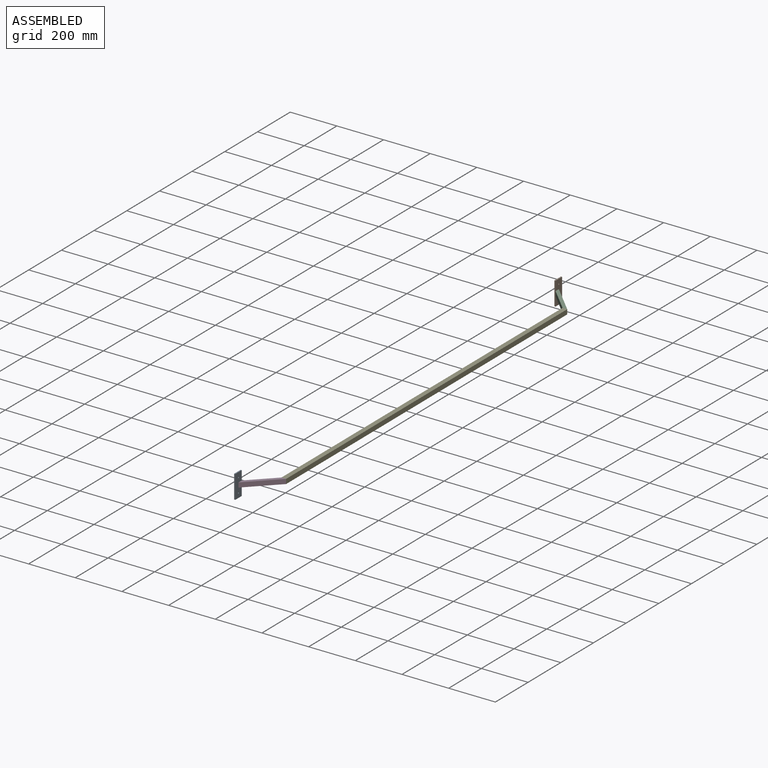
[diagram: assembled view]
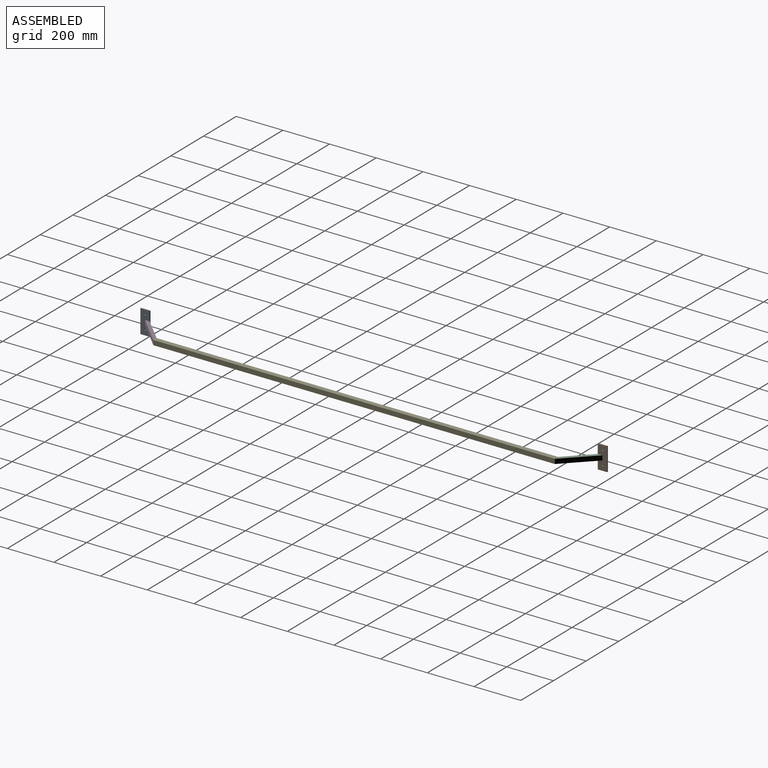
[diagram: assembled view, second angle]
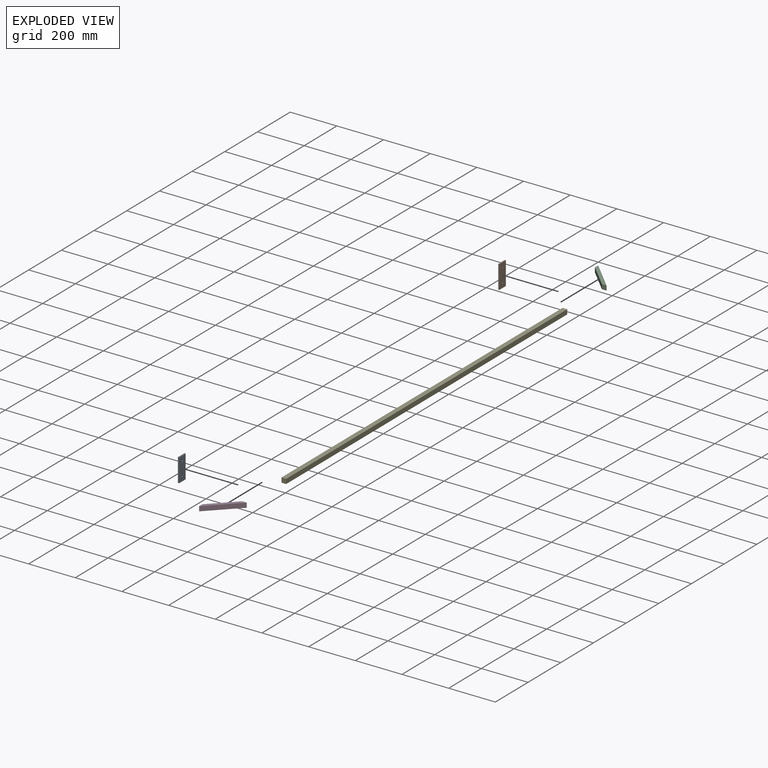
[diagram: exploded view]
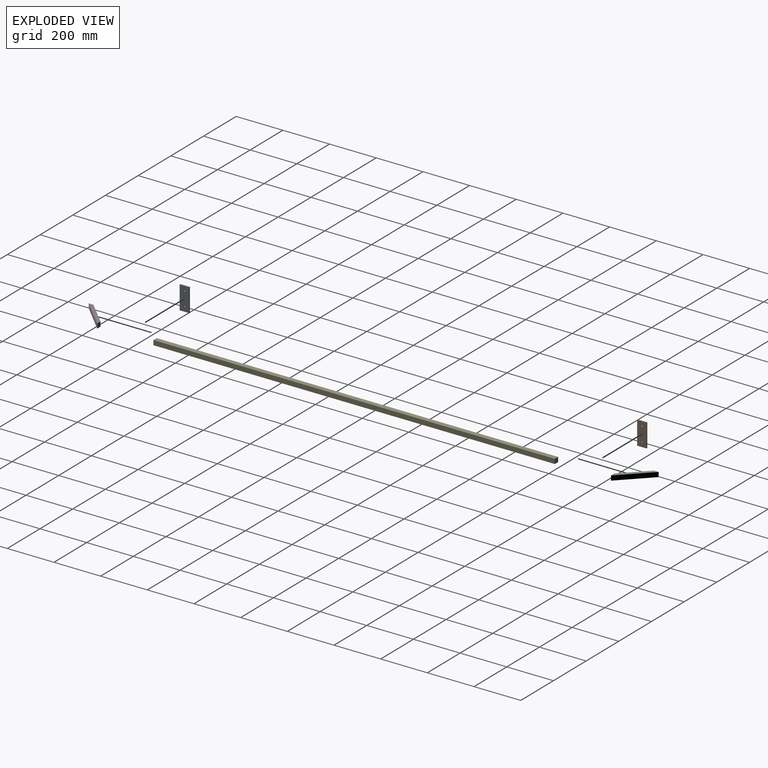
[diagram: exploded view, second angle]
ASSEMBLY  parts=5 mates=6
PART A: 8 faces, bbox 40x5x100 mm
  f0: plane 40x5mm, normal (0,0,1), area 200mm2, adj f1,f5,f6,f7
  f1: plane 100x5mm, normal (-1,0,0), area 500mm2, adj f0,f2,f6,f7
  f2: plane 40x5mm, normal (0,0,-1), area 200mm2, adj f1,f5,f6,f7
  f3: cylinder r=3mm len=6mm, axis (0,1,0), area 94.2mm2, adj f6,f7
  f4: cylinder r=3mm len=6mm, axis (0,1,0), area 94.2mm2, adj f6,f7
  f5: plane 100x5mm, normal (1,0,0), area 500mm2, adj f0,f2,f6,f7
  f6: plane 100x40mm, normal (0,-1,0), area 3943.5mm2, adj f0,f1,f2,f3,f4,f5
  f7: plane 100x40mm, normal (0,1,0), area 3943.5mm2, adj f0,f1,f2,f3,f4,f5
PART B: same geometry as A
PART C: 6 faces, bbox 120x120x20 mm
  f0: plane 120x120mm, normal (-0.71,-0.71,0), area 3394.1mm2, adj f1,f3,f4,f5
  f1: plane 20x20mm, normal (1,0,0), area 400mm2, adj f0,f2,f4,f5
  f2: plane 100x100mm, normal (0.71,0.71,0), area 2828.4mm2, adj f1,f3,f4,f5
  f3: plane 20x20mm, normal (0,1,0), area 400mm2, adj f0,f2,f4,f5
  f4: plane 120x120mm, normal (0,0,1), area 2200mm2, adj f0,f1,f2,f3
  f5: plane 120x120mm, normal (0,0,-1), area 2200mm2, adj f0,f1,f2,f3
PART D: same geometry as C
PART E: 6 faces, bbox 1720x20x20 mm
  f0: plane 1720x20mm, normal (0,1,0), area 34400mm2, adj f1,f3,f4,f5
  f1: plane 20x20mm, normal (-1,0,0), area 400mm2, adj f0,f2,f4,f5
  f2: plane 1720x20mm, normal (0,-1,0), area 34400mm2, adj f1,f3,f4,f5
  f3: plane 20x20mm, normal (1,0,0), area 400mm2, adj f0,f2,f4,f5
  f4: plane 1720x20mm, normal (0,0,1), area 34400mm2, adj f0,f1,f2,f3
  f5: plane 1720x20mm, normal (0,0,-1), area 34400mm2, adj f0,f1,f2,f3
PLACE A rot(axis=(-0.71,0.71,0),180deg) t=(-1278.45,418.43,77.26)mm
PLACE B rot(axis=(-0.71,0.71,0),180deg) t=(-1278.45,2378.43,77.26)mm
PLACE C rot(axis=(-0.71,0.71,0),180deg) t=(-1225.21,1839.5,87.26)mm
PLACE D rot(axis=(0,0,1),90deg) t=(-1225.21,957.35,67.26)mm
PLACE E rot(axis=(0,0,-1),90deg) t=(-1163.45,1398.43,67.26)mm
MATE planar D.f1 <-> E.f3  axis (0,1,0) through (-1163.45,538.43,77.26)mm
MATE planar B.f6 <-> C.f3  axis (1,0,0) through (-1273.45,2358.43,77.26)mm
MATE planar C.f1 <-> E.f1  axis (0,-1,0) through (-1163.45,2258.43,77.26)mm
MATE planar A.f6 <-> D.f3  axis (1,0,0) through (-1273.45,438.43,77.26)mm
MATE planar A.f6 <-> D.f3  axis (1,0,0) through (-1273.45,438.43,77.26)mm
MATE planar B.f6 <-> C.f3  axis (1,0,0) through (-1273.45,2358.43,77.26)mm
